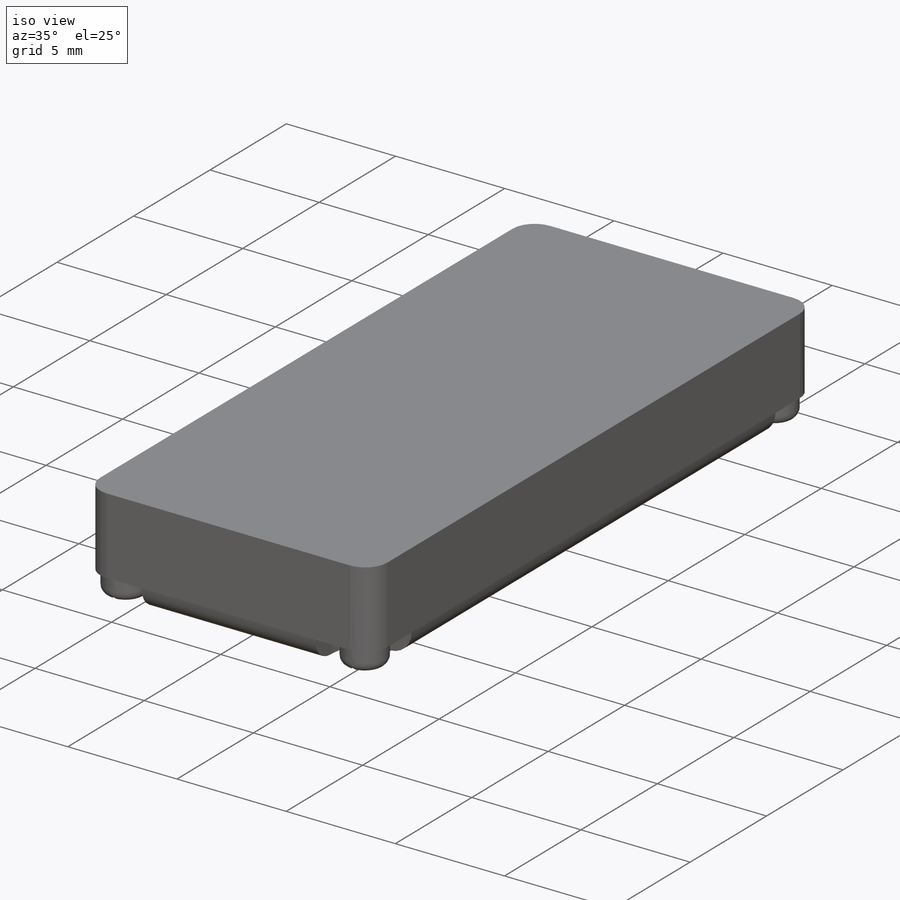
[diagram: iso view]
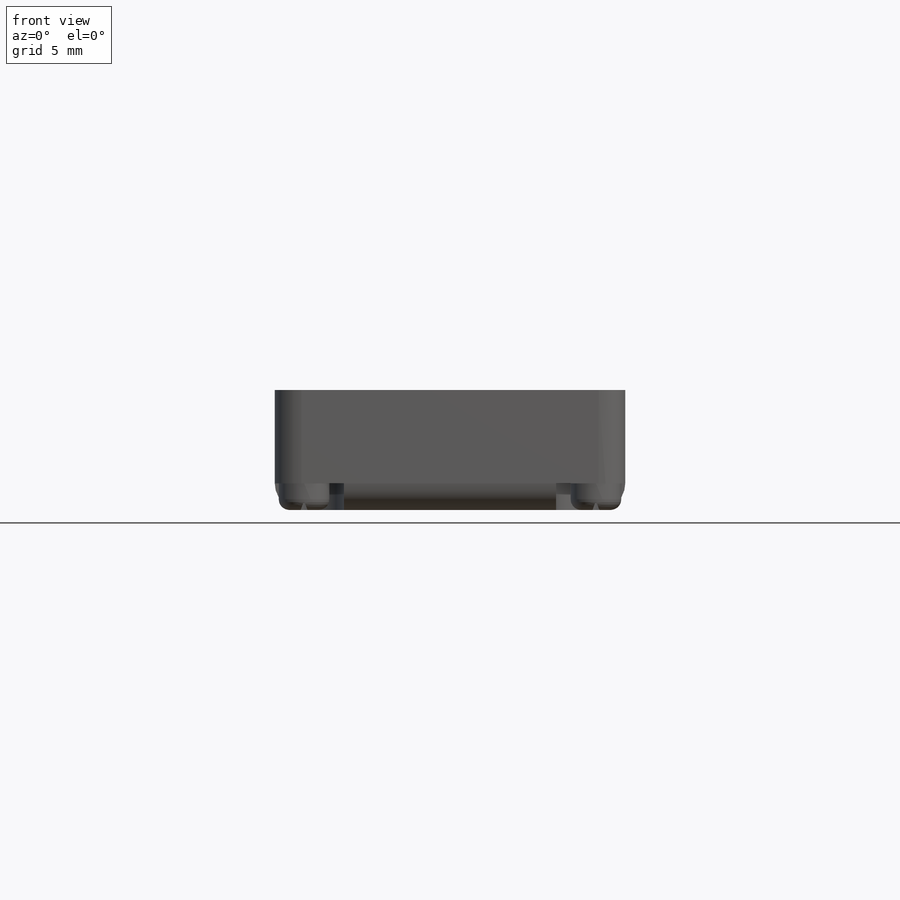
[diagram: front view]
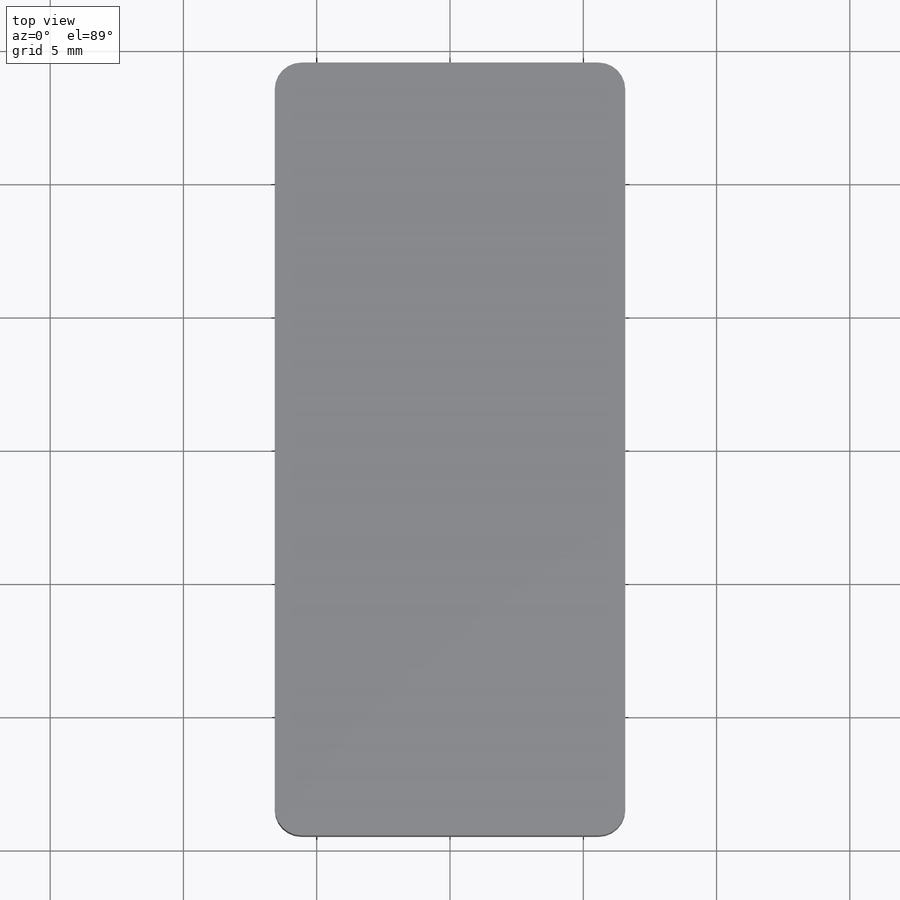
[diagram: top view]
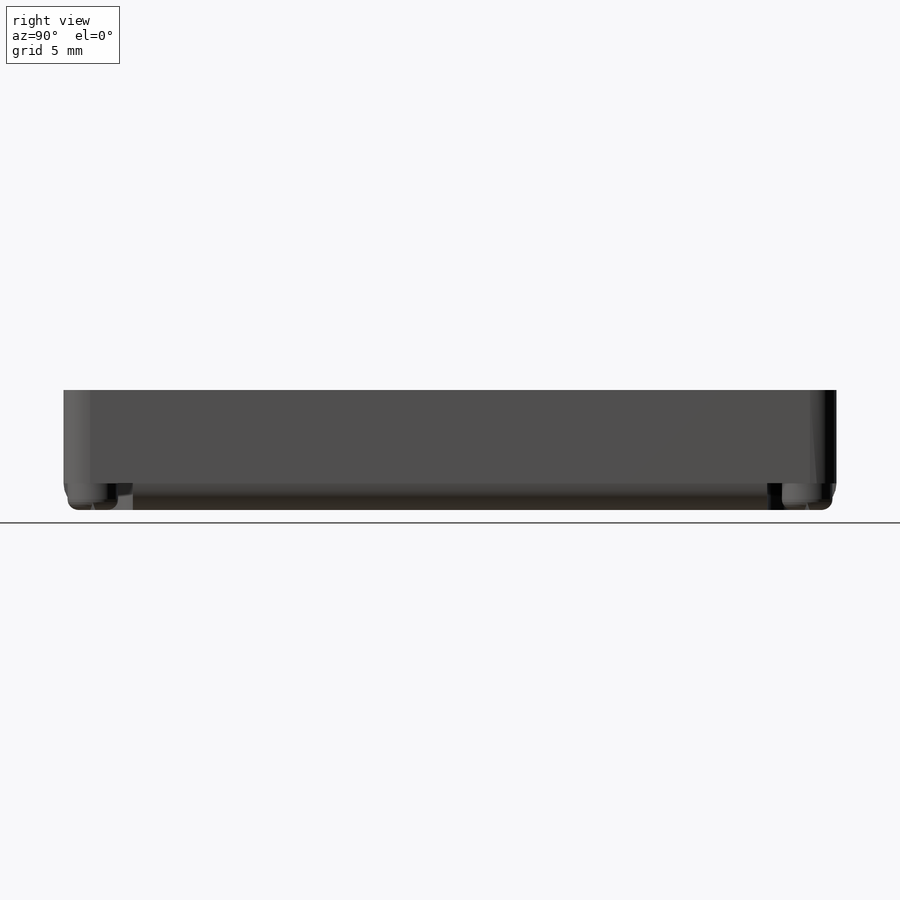
[diagram: right view]
SOLIDWORKS PART (.sldprt)
format: sldprt  version: not decoded by parser v0  size: 389,632 bytes
history: native  units: mm
features: sketch x4, fillet x3, extrude x2, cut_extrude x2, mirror x2, material x1 (+13 scaffold rows collapsed)
feature tree (27):
  scaffold x13  (default folders/planes/origin — collapsed)
  material  "Material <not specified>"
  sketch  "Sketch1"  dims[D1=13.15mm D2=29.0mm]
  extrude  "Boss-Extrude1"  Depth=4.5mm
  sketch  "Sketch2"  dims[D3=1.5mm D1=2.6mm D2=2.6mm]
  cut_extrude  "Cut-Extrude1"  Depth=1mm
  sketch  "Sketch5"  dims[D1=1.9mm D2=0.2mm]
  extrude  "Boss-Extrude3"  Depth=1mm
  fillet  "Fillet2"  Radius=0.4mm
  sketch  "Sketch6"
  cut_extrude  "Cut-Extrude3"  Depth=1mm
  mirror  "Mirror6"
  mirror  "Mirror7"
  fillet  "Fillet3"  Radius=1mm
  fillet  "Fillet4"  Radius=1mm
decode coverage: 10 of 13 modeling features carry decoded parameters
note: suppression state not decoded; provenance and decode notes live in map.json
